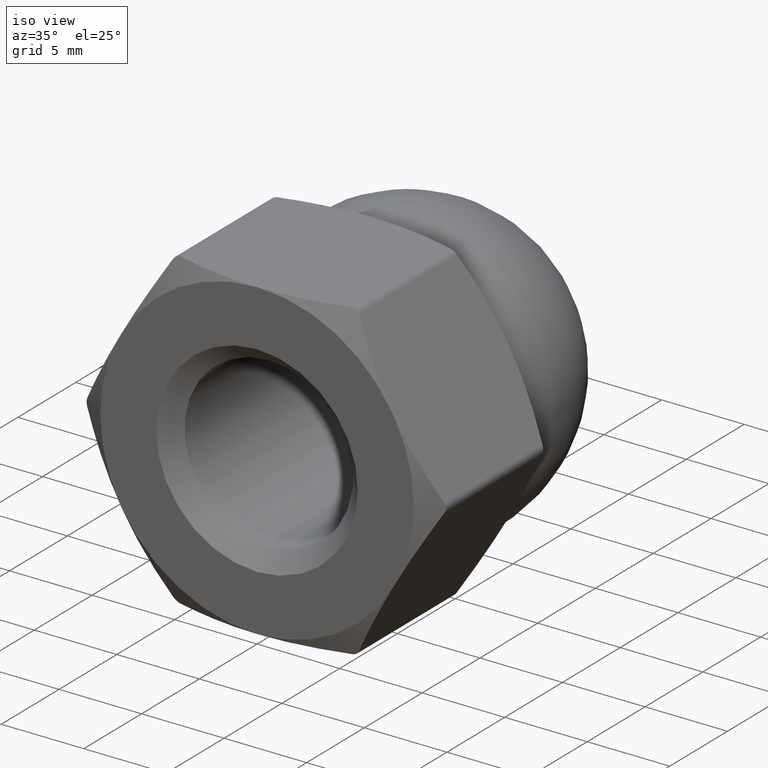
[diagram: clean part render]
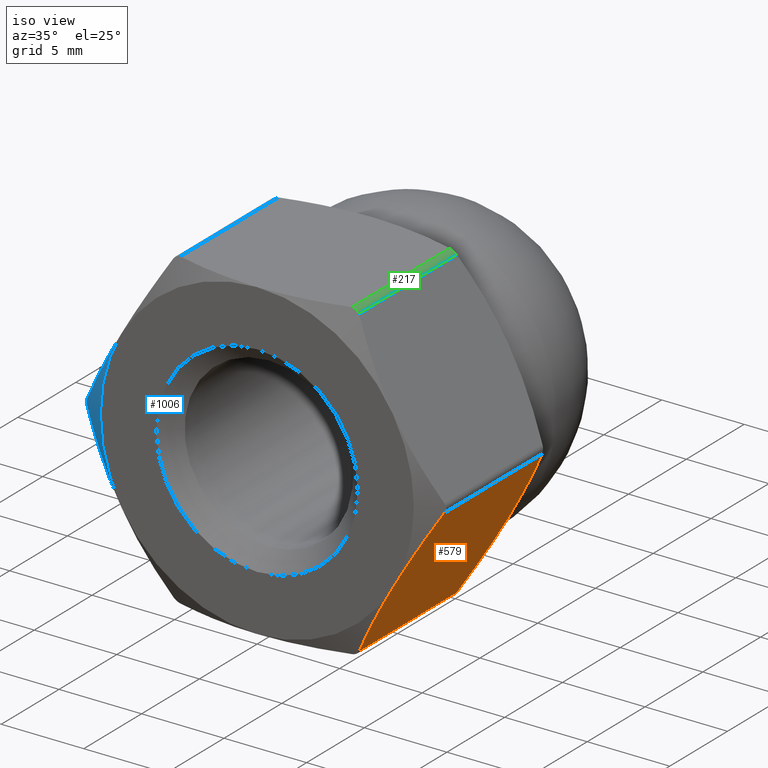
[diagram: same view with three faces highlighted in distinct colors, each labeled with its STEP entity id]
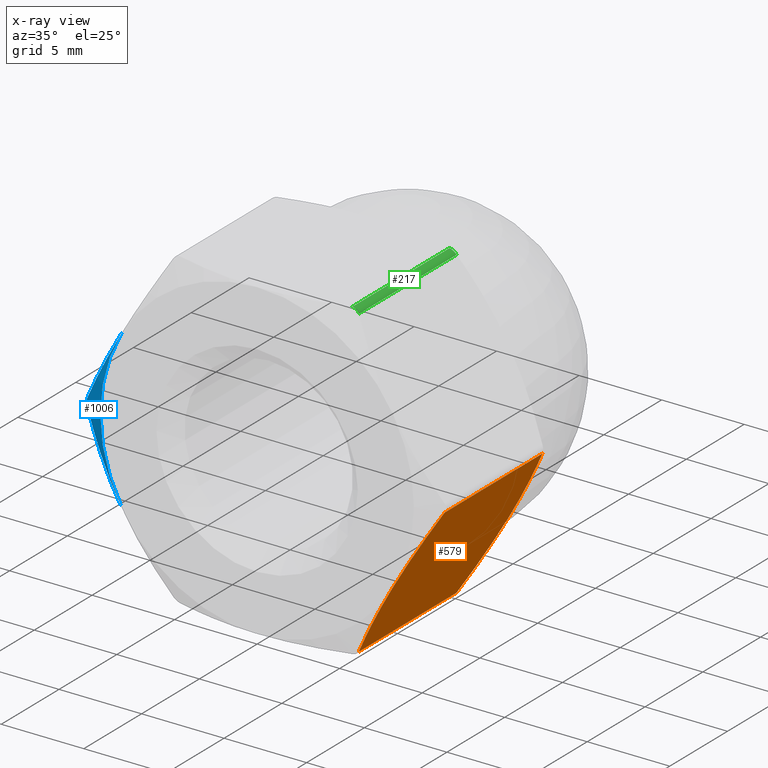
[diagram: x-ray of the same camera — body ghosted, the three highlighted faces saturated]
A machine part, iso view with three faces highlighted in distinct colors.
The next image is the same camera in x-ray (body ghosted, the three faces saturated) — at least one of them is partly hidden behind the body in this view.
Their STEP definitions:

[orange] entity #579 — the highlighted planar face has unit normal (-0.866, 0, 0.5).
#12 = CARTESIAN_POINT ( 'NONE',  ( 7.348052271291519900, 0.07233724270565480800, -6.272800129451192100 ) ) ;
#28 = CARTESIAN_POINT ( 'NONE',  ( 8.227241335952166800, 0.0000000000000000000, -4.750000000000000900 ) ) ;
#58 = CARTESIAN_POINT ( 'NONE',  ( 7.347778050468415100, 9.912405536657765000, -6.273275093849300700 ) ) ;
#101 = CARTESIAN_POINT ( 'NONE',  ( 8.227241335952166800, 0.0000000000000000000, -4.750000000000000900 ) ) ;
#127 = CARTESIAN_POINT ( 'NONE',  ( 8.227241335952166800, 10.00000000000000000, -4.750000000000000900 ) ) ;
#253 = CARTESIAN_POINT ( 'NONE',  ( 5.629165124599470700, 9.233161112798116600, -9.249999999998921800 ) ) ;
#258 = VERTEX_POINT ( 'NONE', #1334 ) ;
#261 = CARTESIAN_POINT ( 'NONE',  ( 8.227241335952166800, 10.00000000000000000, -4.750000000000000900 ) ) ;
#269 = CARTESIAN_POINT ( 'NONE',  ( 7.130196065326114100, 9.860768812073107600, -6.650138146927468500 ) ) ;
#290 = ORIENTED_EDGE ( 'NONE', *, *, #1281, .T. ) ;
#321 = EDGE_CURVE ( 'NONE', #725, #759, #611, .T. ) ;
#325 = VERTEX_POINT ( 'NONE', #1120 ) ;
#326 = CARTESIAN_POINT ( 'NONE',  ( 9.106430400612806500, 9.927662757294346100, -3.227199870548807900 ) ) ;
#328 = CARTESIAN_POINT ( 'NONE',  ( 10.96965511460288800, 10.00000000000000000, -7.928784615339523200E-016 ) ) ;
#337 = EDGE_CURVE ( 'NONE', #325, #258, #1137, .T. ) ;
#341 = DIRECTION ( 'NONE',  ( -0.0000000000000000000, 1.000000000000000000, -0.0000000000000000000 ) ) ;
#371 = CARTESIAN_POINT ( 'NONE',  ( 6.481161992789358500, 9.661040693213097400, -7.774298136404470800 ) ) ;
#397 = AXIS2_PLACEMENT_3D ( 'NONE', #328, #970, #1305 ) ;
#411 = CARTESIAN_POINT ( 'NONE',  ( 6.482771478358439600, 0.3383173127795158200, -7.771510425624781800 ) ) ;
#428 = CARTESIAN_POINT ( 'NONE',  ( 8.447481077618254700, -6.296842929888468700E-015, -4.368533577588495500 ) ) ;
#432 = CARTESIAN_POINT ( 'NONE',  ( 8.227241335952166800, 0.0000000000000000000, -4.750000000000000900 ) ) ;
#434 = CARTESIAN_POINT ( 'NONE',  ( 8.669433656285395500, 10.00000000000000900, -3.984100434466073500 ) ) ;
#447 = PLANE ( 'NONE',  #397 ) ;
#448 = ORIENTED_EDGE ( 'NONE', *, *, #337, .T. ) ;
#459 = CARTESIAN_POINT ( 'NONE',  ( 10.82531754730548100, 0.7668388872022289200, -0.2500000000000003900 ) ) ;
#487 = VERTEX_POINT ( 'NONE', #101 ) ;
#491 = B_SPLINE_CURVE_WITH_KNOTS ( 'NONE', 3,
 ( #28, #428, #995, #892, #1096, #888, #687, #459 ),
 .UNSPECIFIED., .F., .F.,
 ( 4, 2, 2, 4 ),
 ( 0.005549985383765657600, 0.006857997360578062400, 0.008166009337390468100, 0.01078203329101527800 ),
 .UNSPECIFIED. ) ;
#495 = LINE ( 'NONE', #1190, #1309 ) ;
#535 = CARTESIAN_POINT ( 'NONE',  ( 5.629165124598828600, 0.7668388872022389200, -9.250000000000033800 ) ) ;
#537 = CARTESIAN_POINT ( 'NONE',  ( 7.785049015618935400, -6.291760732204942900E-015, -5.515899565533926500 ) ) ;
#549 = B_SPLINE_CURVE_WITH_KNOTS ( 'NONE', 3,
 ( #663, #551, #761, #326, #434, #127 ),
 .UNSPECIFIED., .F., .F.,
 ( 4, 2, 4 ),
 ( 0.0002975922718335174500, 0.002923788827799585900, 0.005549985383765654100 ),
 .UNSPECIFIED. ) ;
#551 = CARTESIAN_POINT ( 'NONE',  ( 10.40005022359170000, 9.468805358379269100, -0.9865846114711150900 ) ) ;
#579 = ADVANCED_FACE ( 'NONE', ( #813 ), #447, .F. ) ;
#611 = B_SPLINE_CURVE_WITH_KNOTS ( 'NONE', 3,
 ( #261, #1232, #1237, #58, #269, #371, #1338, #695 ),
 .UNSPECIFIED., .F., .F.,
 ( 4, 2, 2, 4 ),
 ( 0.005549985383765654100, 0.006857997360577738900, 0.008166009337389822800, 0.01078203329101399400 ),
 .UNSPECIFIED. ) ;
#619 = ORIENTED_EDGE ( 'NONE', *, *, #321, .F. ) ;
#654 = EDGE_CURVE ( 'NONE', #325, #725, #549, .T. ) ;
#663 = CARTESIAN_POINT ( 'NONE',  ( 10.82531754730550100, 9.233161112797761300, -0.2499999999999678600 ) ) ;
#681 = EDGE_CURVE ( 'NONE', #487, #258, #491, .T. ) ;
#687 = CARTESIAN_POINT ( 'NONE',  ( 10.40106991011710500, 0.5317596586079597100, -0.9848184626013113400 ) ) ;
#695 = CARTESIAN_POINT ( 'NONE',  ( 5.629165124599470700, 9.233161112798116600, -9.249999999998921800 ) ) ;
#725 = VERTEX_POINT ( 'NONE', #785 ) ;
#759 = VERTEX_POINT ( 'NONE', #253 ) ;
#761 = CARTESIAN_POINT ( 'NONE',  ( 9.971711193545894900, 9.661682687220487500, -1.728489574375220900 ) ) ;
#785 = CARTESIAN_POINT ( 'NONE',  ( 8.227241335952166800, 10.00000000000000000, -4.750000000000000900 ) ) ;
#813 = FACE_OUTER_BOUND ( 'NONE', #968, .T. ) ;
#831 = DIRECTION ( 'NONE',  ( 0.0000000000000000000, -1.000000000000000000, 0.0000000000000000000 ) ) ;
#871 = CARTESIAN_POINT ( 'NONE',  ( 5.629165124598828600, 0.7668388872022389200, -9.250000000000033800 ) ) ;
#888 = CARTESIAN_POINT ( 'NONE',  ( 9.973320679115389000, 0.3389593067870597700, -1.725701863594800700 ) ) ;
#892 = CARTESIAN_POINT ( 'NONE',  ( 9.106704621436120900, 0.08759446334227266600, -3.226724906150327600 ) ) ;
#906 = CARTESIAN_POINT ( 'NONE',  ( 10.82531754730548100, 10.00000000000000000, -0.2500000000000006100 ) ) ;
#968 = EDGE_LOOP ( 'NONE', ( #1179, #290, #619, #1325, #448, #1362 ) ) ;
#970 = DIRECTION ( 'NONE',  ( -0.8660254037844386000, 0.0000000000000000000, 0.5000000000000001100 ) ) ;
#995 = CARTESIAN_POINT ( 'NONE',  ( 8.668755713662406500, 0.01794685291829278100, -3.985274665533705900 ) ) ;
#997 = VECTOR ( 'NONE', #831, 1000.000000000000000 ) ;
#1096 = CARTESIAN_POINT ( 'NONE',  ( 9.324286606578482400, 0.1392311879269588500, -2.849861853072072300 ) ) ;
#1120 = CARTESIAN_POINT ( 'NONE',  ( 10.82531754730550100, 9.233161112797761300, -0.2499999999999678600 ) ) ;
#1137 = LINE ( 'NONE', #906, #997 ) ;
#1179 = ORIENTED_EDGE ( 'NONE', *, *, #1234, .F. ) ;
#1190 = CARTESIAN_POINT ( 'NONE',  ( 5.629165124598848100, 10.00000000000000000, -9.250000000000001800 ) ) ;
#1199 = B_SPLINE_CURVE_WITH_KNOTS ( 'NONE', 3,
 ( #535, #1292, #411, #12, #537, #432 ),
 .UNSPECIFIED., .F., .F.,
 ( 4, 2, 4 ),
 ( 0.0002975922718335184800, 0.002923788827799588100, 0.005549985383765657600 ),
 .UNSPECIFIED. ) ;
#1232 = CARTESIAN_POINT ( 'NONE',  ( 8.007001594286135700, 10.00000000000000700, -5.131466422411412200 ) ) ;
#1234 = EDGE_CURVE ( 'NONE', #1331, #487, #1199, .T. ) ;
#1237 = CARTESIAN_POINT ( 'NONE',  ( 7.785726958242031900, 9.982053147081716200, -5.514725334466109400 ) ) ;
#1281 = EDGE_CURVE ( 'NONE', #1331, #759, #495, .T. ) ;
#1292 = CARTESIAN_POINT ( 'NONE',  ( 6.054432448312631700, 0.5311946416207333800, -8.513415388528887500 ) ) ;
#1305 = DIRECTION ( 'NONE',  ( 0.5000000000000001100, 0.0000000000000000000, 0.8660254037844386000 ) ) ;
#1309 = VECTOR ( 'NONE', #341, 1000.000000000000000 ) ;
#1325 = ORIENTED_EDGE ( 'NONE', *, *, #654, .F. ) ;
#1331 = VERTEX_POINT ( 'NONE', #871 ) ;
#1334 = CARTESIAN_POINT ( 'NONE',  ( 10.82531754730548100, 0.7668388872022289200, -0.2500000000000003900 ) ) ;
#1338 = CARTESIAN_POINT ( 'NONE',  ( 6.053412761787746500, 9.468240341392288400, -8.515181537397786800 ) ) ;
#1362 = ORIENTED_EDGE ( 'NONE', *, *, #681, .F. ) ;

[blue] entity #1006 — the highlighted conical surface has half-angle 60 deg.
#18 = B_SPLINE_CURVE_WITH_KNOTS ( 'NONE', 3,
 ( #152, #256, #457, #450, #669, #775 ),
 .UNSPECIFIED., .F., .F.,
 ( 4, 2, 4 ),
 ( 7.130226551314055800E-019, 0.0002637781458274609400, 0.0005275562916549212300 ),
 .UNSPECIFIED. ) ;
#21 = FACE_OUTER_BOUND ( 'NONE', #1162, .T. ) ;
#40 = VERTEX_POINT ( 'NONE', #63 ) ;
#63 = CARTESIAN_POINT ( 'NONE',  ( -10.82531754730548100, 0.7668388872022289200, 0.2499999999999960600 ) ) ;
#71 = CARTESIAN_POINT ( 'NONE',  ( 0.0000000000000000000, 0.8485057760318770500, 0.0000000000000000000 ) ) ;
#104 = EDGE_CURVE ( 'NONE', #1264, #369, #737, .T. ) ;
#152 = CARTESIAN_POINT ( 'NONE',  ( -10.82531754730548100, 0.7668388872022289200, 0.2499999999999960600 ) ) ;
#156 = CARTESIAN_POINT ( 'NONE',  ( 0.0000000000000000000, 0.0000000000000000000, 0.0000000000000000000 ) ) ;
#158 = EDGE_CURVE ( 'NONE', #40, #903, #18, .T. ) ;
#180 = DIRECTION ( 'NONE',  ( -0.0000000000000000000, 1.000000000000000000, -0.0000000000000000000 ) ) ;
#256 = CARTESIAN_POINT ( 'NONE',  ( -10.86825100933169000, 0.7906286841257682600, 0.1756370624257715100 ) ) ;
#349 = CONICAL_SURFACE ( 'NONE', #443, 10.96965511460288800, 1.047197551196603200 ) ;
#355 = CARTESIAN_POINT ( 'NONE',  ( -10.40005022359169800, 0.5311946416207344900, -0.9865846114711169800 ) ) ;
#369 = VERTEX_POINT ( 'NONE', #478 ) ;
#443 = AXIS2_PLACEMENT_3D ( 'NONE', #71, #180, #1349 ) ;
#450 = CARTESIAN_POINT ( 'NONE',  ( -10.89238375193504300, 0.8038910427624002000, -0.08764487288686240200 ) ) ;
#457 = CARTESIAN_POINT ( 'NONE',  ( -10.89222553569150700, 0.8038038897225738800, 0.08854287053794503100 ) ) ;
#461 = DIRECTION ( 'NONE',  ( 0.0000000000000000000, 0.0000000000000000000, 1.000000000000000000 ) ) ;
#472 = ORIENTED_EDGE ( 'NONE', *, *, #1369, .T. ) ;
#476 = CARTESIAN_POINT ( 'NONE',  ( -10.82531754730550100, 0.7668388872022395800, -0.2499999999999707500 ) ) ;
#477 = CARTESIAN_POINT ( 'NONE',  ( -9.106704621436126200, 0.08759446334227295700, 3.226724906150326300 ) ) ;
#478 = CARTESIAN_POINT ( 'NONE',  ( -8.227241335952168600, 0.0000000000000000000, 4.749999999999998200 ) ) ;
#480 = CARTESIAN_POINT ( 'NONE',  ( -9.973320679115392600, 0.3389593067870601000, 1.725701863594796700 ) ) ;
#493 = CARTESIAN_POINT ( 'NONE',  ( -10.82531754730550100, 0.7668388872022395800, -0.2499999999999707500 ) ) ;
#669 = CARTESIAN_POINT ( 'NONE',  ( -10.86826663802257000, 0.7906373441164759000, -0.1756099927391021100 ) ) ;
#737 = CIRCLE ( 'NONE', #1145, 9.499999999999998200 ) ;
#756 = ORIENTED_EDGE ( 'NONE', *, *, #158, .T. ) ;
#775 = CARTESIAN_POINT ( 'NONE',  ( -10.82531754730550100, 0.7668388872022395800, -0.2499999999999707500 ) ) ;
#777 = CARTESIAN_POINT ( 'NONE',  ( -8.227241335952166800, 0.0000000000000000000, -4.749999999999999100 ) ) ;
#801 = CARTESIAN_POINT ( 'NONE',  ( -10.82531754730548100, 0.7668388872022289200, 0.2499999999999960600 ) ) ;
#887 = CARTESIAN_POINT ( 'NONE',  ( -9.971711193545896600, 0.3383173127795161000, -1.728489574375223300 ) ) ;
#903 = VERTEX_POINT ( 'NONE', #493 ) ;
#908 = EDGE_CURVE ( 'NONE', #369, #40, #1302, .T. ) ;
#972 = DIRECTION ( 'NONE',  ( 0.0000000000000000000, 1.000000000000000000, 0.0000000000000000000 ) ) ;
#994 = CARTESIAN_POINT ( 'NONE',  ( -8.669433656285400900, -5.166900978251232100E-015, -3.984100434466075800 ) ) ;
#1006 = ADVANCED_FACE ( 'NONE', ( #21 ), #349, .T. ) ;
#1008 = CARTESIAN_POINT ( 'NONE',  ( -10.40106991011710800, 0.5317596586079596000, 0.9848184626013074500 ) ) ;
#1126 = CARTESIAN_POINT ( 'NONE',  ( -8.227241335952168600, 0.0000000000000000000, 4.749999999999998200 ) ) ;
#1139 = ORIENTED_EDGE ( 'NONE', *, *, #104, .T. ) ;
#1142 = ORIENTED_EDGE ( 'NONE', *, *, #908, .T. ) ;
#1143 = B_SPLINE_CURVE_WITH_KNOTS ( 'NONE', 3,
 ( #476, #355, #887, #1335, #994, #1221 ),
 .UNSPECIFIED., .F., .F.,
 ( 4, 2, 4 ),
 ( 0.0002975922718335181000, 0.002923788827799584600, 0.005549985383765651500 ),
 .UNSPECIFIED. ) ;
#1145 = AXIS2_PLACEMENT_3D ( 'NONE', #156, #972, #461 ) ;
#1162 = EDGE_LOOP ( 'NONE', ( #1142, #756, #472, #1139 ) ) ;
#1221 = CARTESIAN_POINT ( 'NONE',  ( -8.227241335952166800, 0.0000000000000000000, -4.749999999999999100 ) ) ;
#1235 = CARTESIAN_POINT ( 'NONE',  ( -9.324286606578484200, 0.1392311879269589900, 2.849861853072069600 ) ) ;
#1244 = CARTESIAN_POINT ( 'NONE',  ( -8.447481077618253000, -7.204015216397822800E-015, 4.368533577588493700 ) ) ;
#1264 = VERTEX_POINT ( 'NONE', #777 ) ;
#1302 = B_SPLINE_CURVE_WITH_KNOTS ( 'NONE', 3,
 ( #1126, #1244, #1354, #477, #1235, #480, #1008, #801 ),
 .UNSPECIFIED., .F., .F.,
 ( 4, 2, 2, 4 ),
 ( 0.005549985383765656700, 0.006857997360578063300, 0.008166009337390468100, 0.01078203329101527800 ),
 .UNSPECIFIED. ) ;
#1335 = CARTESIAN_POINT ( 'NONE',  ( -9.106430400612810100, 0.07233724270565565500, -3.227199870548808700 ) ) ;
#1349 = DIRECTION ( 'NONE',  ( 0.0000000000000000000, 0.0000000000000000000, -1.000000000000000000 ) ) ;
#1354 = CARTESIAN_POINT ( 'NONE',  ( -8.668755713662408300, 0.01794685291829303100, 3.985274665533703200 ) ) ;
#1369 = EDGE_CURVE ( 'NONE', #903, #1264, #1143, .T. ) ;

[green] entity #217 — the highlighted cylindrical surface (edge-blend (fillet) strip) has radius 0.5 mm, axis along (0, -1, 0).
#6 = CARTESIAN_POINT ( 'NONE',  ( 5.629165124598831200, 9.233161112797761300, 9.250000000000032000 ) ) ;
#7 = EDGE_CURVE ( 'NONE', #934, #1155, #368, .T. ) ;
#23 = ORIENTED_EDGE ( 'NONE', *, *, #7, .F. ) ;
#29 = ORIENTED_EDGE ( 'NONE', *, *, #571, .F. ) ;
#60 = VERTEX_POINT ( 'NONE', #6 ) ;
#75 = AXIS2_PLACEMENT_3D ( 'NONE', #587, #1240, #1123 ) ;
#88 = VECTOR ( 'NONE', #1016, 1000.000000000000000 ) ;
#95 = CARTESIAN_POINT ( 'NONE',  ( 5.196152422706629400, 9.233161112797772000, 9.500000000000000000 ) ) ;
#143 = ORIENTED_EDGE ( 'NONE', *, *, #608, .F. ) ;
#217 = ADVANCED_FACE ( 'NONE', ( #672 ), #783, .T. ) ;
#239 = CARTESIAN_POINT ( 'NONE',  ( 5.629165124598849900, 0.7668388872022298100, 9.250000000000001800 ) ) ;
#335 = CARTESIAN_POINT ( 'NONE',  ( 5.522793143055602100, 0.8038038897225767700, 9.388672582389451900 ) ) ;
#368 = LINE ( 'NONE', #914, #88 ) ;
#490 = CARTESIAN_POINT ( 'NONE',  ( 5.196152422706632000, 0.7668388872022293700, 9.500000000000000000 ) ) ;
#501 = CARTESIAN_POINT ( 'NONE',  ( 5.629165124598831200, 9.233161112797761300, 9.250000000000032000 ) ) ;
#526 = CARTESIAN_POINT ( 'NONE',  ( 5.196152422706629400, 9.233161112797772000, 9.500000000000000000 ) ) ;
#538 = DIRECTION ( 'NONE',  ( 0.0000000000000000000, -1.000000000000000000, 0.0000000000000000000 ) ) ;
#555 = ORIENTED_EDGE ( 'NONE', *, *, #1080, .F. ) ;
#563 = CARTESIAN_POINT ( 'NONE',  ( 5.629165124598849900, 0.7668388872022298100, 9.250000000000001800 ) ) ;
#571 = EDGE_CURVE ( 'NONE', #60, #1300, #688, .T. ) ;
#587 = CARTESIAN_POINT ( 'NONE',  ( 5.196152422706631100, 10.00000000000000000, 9.000000000000000000 ) ) ;
#594 = B_SPLINE_CURVE_WITH_KNOTS ( 'NONE', 3,
 ( #239, #757, #335, #766, #1086, #974 ),
 .UNSPECIFIED., .F., .F.,
 ( 4, 2, 4 ),
 ( 1.987375409620156700E-018, 0.0002637781458274812200, 0.0005275562916549603700 ),
 .UNSPECIFIED. ) ;
#608 = EDGE_CURVE ( 'NONE', #1300, #934, #594, .T. ) ;
#629 = CARTESIAN_POINT ( 'NONE',  ( 5.522094562399000300, 9.196108957237596500, 9.389258600501177600 ) ) ;
#672 = FACE_OUTER_BOUND ( 'NONE', #1294, .T. ) ;
#688 = LINE ( 'NONE', #1202, #849 ) ;
#727 = CARTESIAN_POINT ( 'NONE',  ( 5.586216033881746600, 9.209362655883525800, 9.324390007260893400 ) ) ;
#757 = CARTESIAN_POINT ( 'NONE',  ( 5.586231662572637400, 0.7906286841257699200, 9.324362937574228700 ) ) ;
#766 = CARTESIAN_POINT ( 'NONE',  ( 5.370289189536019400, 0.8038910427623993100, 9.476903473388045300 ) ) ;
#783 = CYLINDRICAL_SURFACE ( 'NONE', #75, 0.5000000000000004400 ) ;
#849 = VECTOR ( 'NONE', #538, 1000.000000000000000 ) ;
#899 = B_SPLINE_CURVE_WITH_KNOTS ( 'NONE', 3,
 ( #95, #1275, #1164, #629, #727, #501 ),
 .UNSPECIFIED., .F., .F.,
 ( 4, 2, 4 ),
 ( 1.734723475976807100E-018, 0.0002637781458274612700, 0.0005275562916549208000 ),
 .UNSPECIFIED. ) ;
#914 = CARTESIAN_POINT ( 'NONE',  ( 5.196152422706631100, 10.00000000000000000, 9.500000000000000000 ) ) ;
#934 = VERTEX_POINT ( 'NONE', #490 ) ;
#974 = CARTESIAN_POINT ( 'NONE',  ( 5.196152422706632000, 0.7668388872022293700, 9.500000000000000000 ) ) ;
#1016 = DIRECTION ( 'NONE',  ( -0.0000000000000000000, 1.000000000000000000, -0.0000000000000000000 ) ) ;
#1080 = EDGE_CURVE ( 'NONE', #1155, #60, #899, .T. ) ;
#1086 = CARTESIAN_POINT ( 'NONE',  ( 5.282050604140776400, 0.7906373441164672400, 9.500000000000000000 ) ) ;
#1123 = DIRECTION ( 'NONE',  ( 0.0000000000000000000, 0.0000000000000000000, -1.000000000000000000 ) ) ;
#1155 = VERTEX_POINT ( 'NONE', #526 ) ;
#1164 = CARTESIAN_POINT ( 'NONE',  ( 5.369432392635895100, 9.196196110277423200, 9.477215452927385500 ) ) ;
#1202 = CARTESIAN_POINT ( 'NONE',  ( 5.629165124598850800, 10.00000000000000000, 9.250000000000000000 ) ) ;
#1240 = DIRECTION ( 'NONE',  ( 0.0000000000000000000, -1.000000000000000000, 0.0000000000000000000 ) ) ;
#1275 = CARTESIAN_POINT ( 'NONE',  ( 5.282019346759049900, 9.209371315874230700, 9.500000000000000000 ) ) ;
#1294 = EDGE_LOOP ( 'NONE', ( #555, #23, #143, #29 ) ) ;
#1300 = VERTEX_POINT ( 'NONE', #563 ) ;